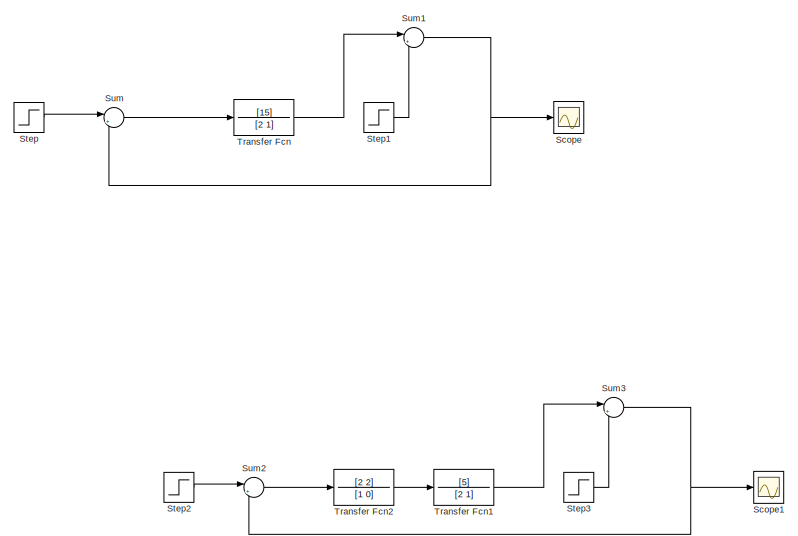
[diagram: root canvas - part 1/2, left side, full height]
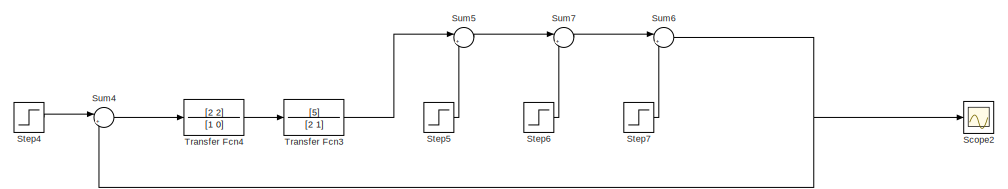
[diagram: root canvas - part 2/2, middle right region]
MODEL slx_e8c6814b3a9f
KIND model
CONFIG AbsTol = auto
CONFIG EnableMultiTasking = off
CONFIG FixedStep = auto
CONFIG MaxStep = auto
CONFIG MinStep = auto
CONFIG RelTol = 1e-3
CONFIG SampleTimeConstraint = Unconstrained
CONFIG SolverName = VariableStepAuto
CONFIG StartTime = 0.0
CONFIG StopTime = 30.0
BLOCK [Scope] Scope
  Floating = off
  NumInputPorts = 1
  ScopeSpecificationString = Simulink.scopes.TimeScopeBlockCfg('CurrentConfiguration', extmgr.ConfigurationSet(extmgr.Configuration('Core','General UI',true),extmgr.Configuration('Core','Source UI',true),extmgr.Configuration('Sources','WiredSimulink',true),extmgr.Configuration('Visuals','Time Domain',true,'SerializedDisplays',{struct('MinYLimReal','-0.17964','MaxYLimReal','1.61675','YLabelReal','','MinYLimMag','0.00000','MaxY...<+1388ch>
BLOCK [Scope] Scope1
  Floating = off
  NumInputPorts = 1
  ScopeSpecificationString = Simulink.scopes.TimeScopeBlockCfg('CurrentConfiguration', extmgr.ConfigurationSet(extmgr.Configuration('Core','General UI',true),extmgr.Configuration('Core','Source UI',true),extmgr.Configuration('Sources','WiredSimulink',true,'DataLoggingVariableName','ScopeData1'),extmgr.Configuration('Visuals','Time Domain',true,'SerializedDisplays',{struct('MinYLimReal','-0.18776','MaxYLimReal','1.6898','YLabe...<+1423ch>
BLOCK [Scope] Scope2
  Floating = off
  NumInputPorts = 1
  ScopeSpecificationString = Simulink.scopes.TimeScopeBlockCfg('CurrentConfiguration', extmgr.ConfigurationSet(extmgr.Configuration('Core','General UI',true),extmgr.Configuration('Core','Source UI',true),extmgr.Configuration('Sources','WiredSimulink',true,'DataLoggingVariableName','ScopeData2'),extmgr.Configuration('Visuals','Time Domain',true,'SerializedDisplays',{struct('MinYLimReal','-0.17498','MaxYLimReal','1.57478','YLab...<+1427ch>
BLOCK [Step] Step
  SampleTime = 0
BLOCK [Step] Step1
  After = 0.5
  SampleTime = 0
  Time = 5
BLOCK [Step] Step2
  SampleTime = 0
BLOCK [Step] Step3
  After = 0.5
  SampleTime = 0
  Time = 5
BLOCK [Step] Step4
  SampleTime = 0
BLOCK [Step] Step5
  After = 0.2
  SampleTime = 0
  Time = 5
BLOCK [Step] Step6
  After = 0.3
  SampleTime = 0
  Time = 10
BLOCK [Step] Step7
  After = 0.4
  SampleTime = 0
  Time = 15
BLOCK [Sum] Sum
  Inputs = |+-
BLOCK [Sum] Sum1
  Inputs = |++
BLOCK [Sum] Sum2
  Inputs = |+-
BLOCK [Sum] Sum3
  Inputs = |++
BLOCK [Sum] Sum4
  Inputs = |+-
BLOCK [Sum] Sum5
  Inputs = |++
BLOCK [Sum] Sum6
  Inputs = |++
BLOCK [Sum] Sum7
  Inputs = |++
BLOCK [TransferFcn] Transfer Fcn
  Denominator = [2 1]
  Numerator = [15]
BLOCK [TransferFcn] Transfer Fcn1
  Denominator = [2 1]
  Numerator = [5]
BLOCK [TransferFcn] Transfer Fcn2
  Denominator = [1 0]
  Numerator = [2 2]
BLOCK [TransferFcn] Transfer Fcn3
  Denominator = [2 1]
  Numerator = [5]
BLOCK [TransferFcn] Transfer Fcn4
  Denominator = [1 0]
  Numerator = [2 2]
LINE Step1:1 -> Sum1:2
LINE Step2:1 -> Sum2:1
LINE Step3:1 -> Sum3:2
LINE Step4:1 -> Sum4:1
LINE Step5:1 -> Sum5:2
LINE Step6:1 -> Sum7:2
LINE Step7:1 -> Sum6:2
LINE Step:1 -> Sum:1
NET Sum1:1 -> Scope:1, Sum:2
LINE Sum2:1 -> Transfer Fcn2:1
NET Sum3:1 -> Scope1:1, Sum2:2
LINE Sum4:1 -> Transfer Fcn4:1
LINE Sum5:1 -> Sum7:1
NET Sum6:1 -> Scope2:1, Sum4:2
LINE Sum7:1 -> Sum6:1
LINE Sum:1 -> Transfer Fcn:1
LINE Transfer Fcn1:1 -> Sum3:1
LINE Transfer Fcn2:1 -> Transfer Fcn1:1
LINE Transfer Fcn3:1 -> Sum5:1
LINE Transfer Fcn4:1 -> Transfer Fcn3:1
LINE Transfer Fcn:1 -> Sum1:1
note: NET lines group one-source signal fan-out (src -> all destinations, sorted); 1:1 wires keep LINE
